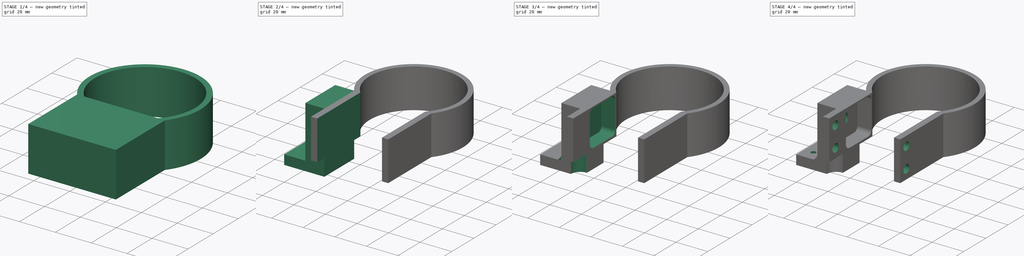
[diagram: build sequence overview — one tinted view per stage of 4, left to right]
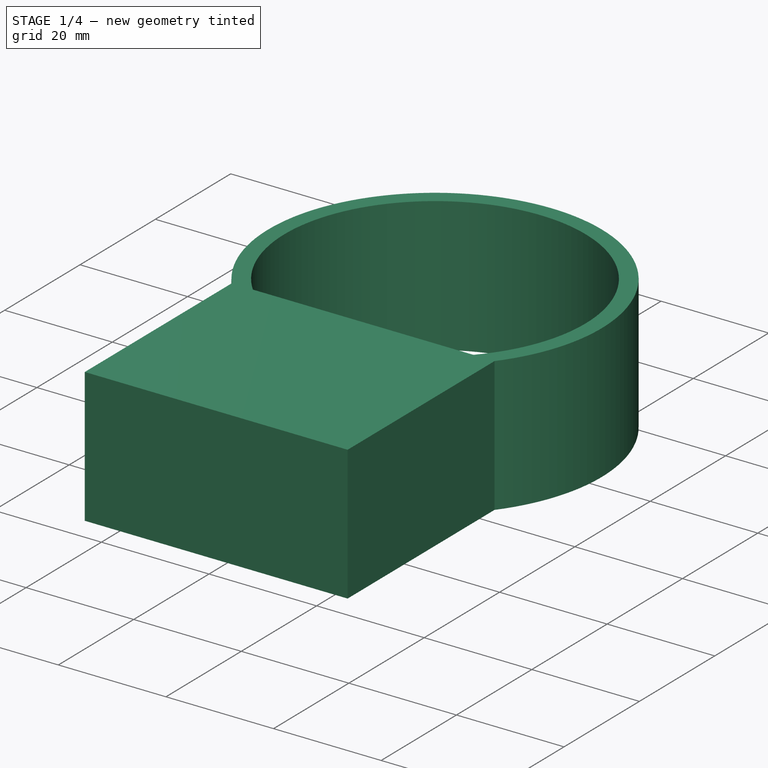
[diagram: stage 1 of 4 — iso view after this stage's code; geometry added in this stage tinted green]
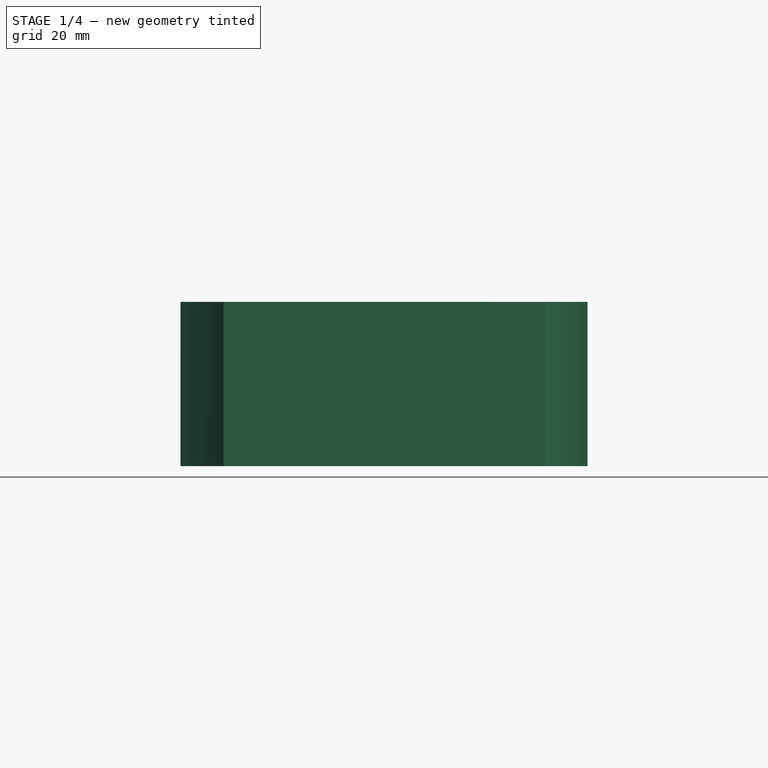
[diagram: stage 1 of 4 — front view after this stage's code; geometry added in this stage tinted green]
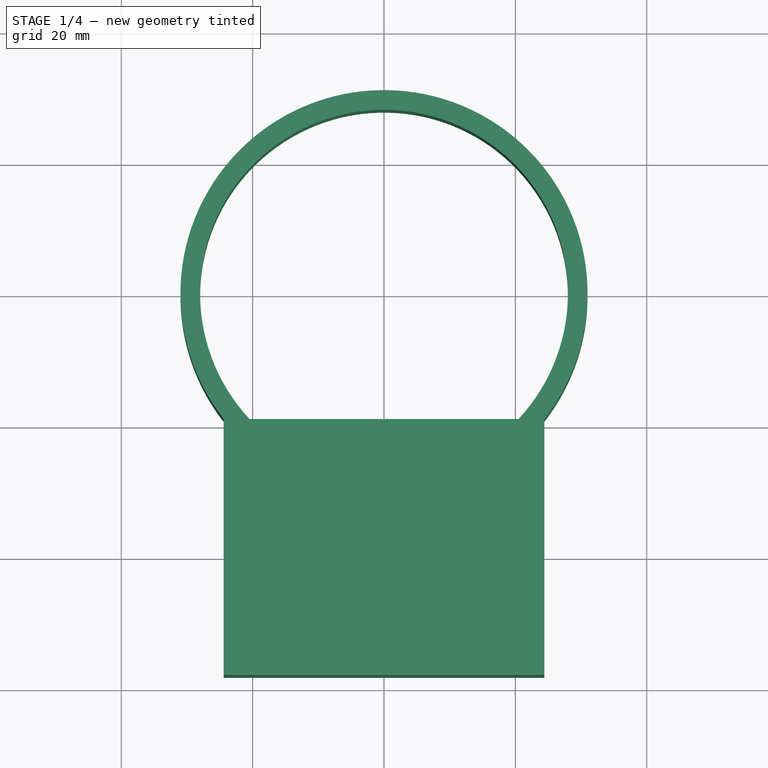
[diagram: stage 1 of 4 — top view after this stage's code; geometry added in this stage tinted green]
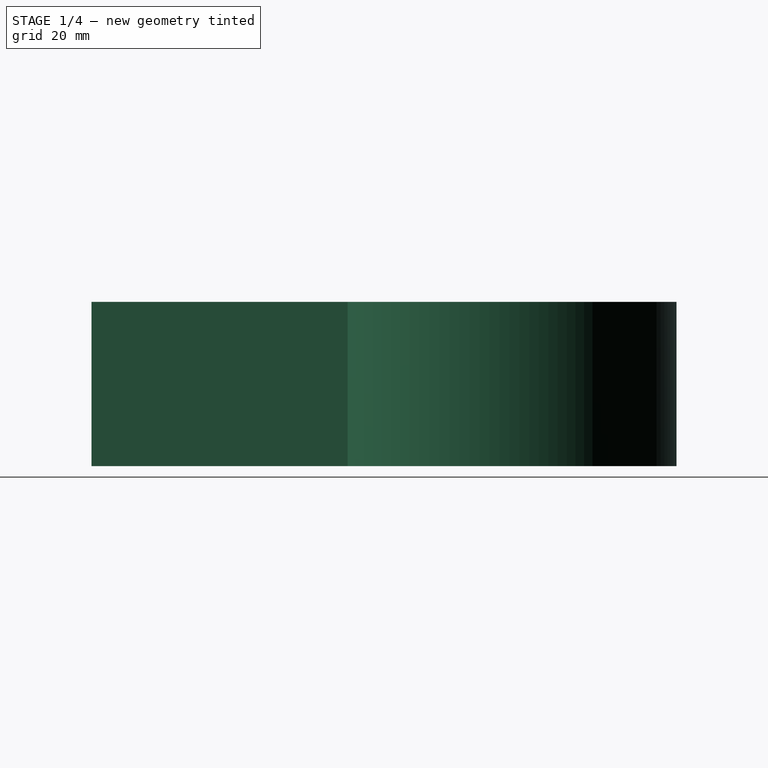
[diagram: stage 1 of 4 — right view after this stage's code; geometry added in this stage tinted green]
FCSTD DOCUMENT  (FreeCAD 1.0R38641 +468 (Git))
Label: DEC-Half-Pipe
License: All rights reserved
LicenseURL: https://en.wikipedia.org/wiki/All_rights_reserved
objects: Sketcher::SketchObject×12, PartDesign::Pocket×7, PartDesign::Pad×5, PartDesign::Body×1
note: 61 computed .brp shape members not serialized (recipe doc carries the construction recipe); baked Part::Feature solids carry a one-line shape summary decoded from their .brp

FEATURE [Sketcher::SketchObject] Sketch167  label="CircleMain003"
  ArcFitTolerance = 1e-06
  AttachmentSupport = -> [XY_Plane019]
  FullyConstrained = true
  MakeInternals = false
  MapMode = 5
  sketch-geometry (2):
    g0: ArcOfCircle CenterX=0 CenterY=0 CenterZ=0 NormalX=0 NormalY=0 NormalZ=1 AngleXU=0 Radius=31 StartAngle=5.61996 EndAngle=10.088
    g1: LineSegment StartX=-24.4283 StartY=-19.0855 StartZ=0 EndX=24.4283 EndY=-19.0855 EndZ=0
  constraints (6):
    c: Radius(g0) = 31
    c: Angle(g0) = 4.46804
    c: Coincident(g0,g-1)
    c: Coincident(g1,g0)
    c: Coincident(g1,g0)
    c: Horizontal(g1)
FEATURE [PartDesign::Pad] Pad079
  Direction = (0,0,1)
  Length = 25
  Length2 = 10
  Profile = -> Sketch167
  ReferenceAxis = -> Sketch167 [N_Axis]
  Refine = true
  Suppressed = false
  Type = 0
FEATURE [Sketcher::SketchObject] Sketch168  label="ClearCircle002"
  ArcFitTolerance = 1e-06
  AttachmentSupport = -> [XY_Plane019]
  FullyConstrained = true
  MakeInternals = false
  MapMode = 5
  sketch-geometry (1):
    g0: Circle CenterX=0 CenterY=0 CenterZ=0 NormalX=0 NormalY=0 NormalZ=1 AngleXU=0 Radius=28
  constraints (2):
    c: Diameter(g0) = 56
    c: Coincident(g0,g-1)
FEATURE [PartDesign::Pocket] Pocket096
  BaseFeature = -> Pad079
  Direction = (0,0,-1)
  Length = 25
  Length2 = 5
  Profile = -> Sketch168
  ReferenceAxis = -> Sketch168 [N_Axis]
  Refine = true
  Reversed = true
  Suppressed = false
  Type = 0
FEATURE [Sketcher::SketchObject] Sketch169  label="Rectangle003"
  ArcFitTolerance = 1e-06
  AttachmentSupport = -> [XY_Plane019]
  FullyConstrained = true
  MakeInternals = false
  MapMode = 5
  sketch-geometry (4):
    g0: LineSegment StartX=-24.4283 StartY=-19.0855 StartZ=0 EndX=-24.4283 EndY=-58.0855 EndZ=0
    g1: LineSegment StartX=-24.4283 StartY=-58.0855 StartZ=0 EndX=24.4283 EndY=-58.0855 EndZ=0
    g2: LineSegment StartX=24.4283 StartY=-58.0855 StartZ=0 EndX=24.4283 EndY=-19.0855 EndZ=0
    g3: LineSegment StartX=24.4283 StartY=-19.0855 StartZ=0 EndX=-24.4283 EndY=-19.0855 EndZ=0
  constraints (12):
    c: Coincident(g0,g1)
    c: Coincident(g1,g2)
    c: Coincident(g2,g3)
    c: Coincident(g3,g0)
    c: Vertical(g0)
    c: Vertical(g2)
    c: Horizontal(g1)
    c: Horizontal(g3)
    c: Distance(g1,g3) = 39
    c: DistanceY(g0,g-1) = 19.0855
    c: Distance(g-1,g0) = 31
    c: Distance(g-1,g2) = 31
FEATURE [PartDesign::Pad] Pad080
  BaseFeature = -> Pocket096
  Direction = (0,0,1)
  Length = 25
  Length2 = 10
  Profile = -> Sketch169
  ReferenceAxis = -> Sketch169 [N_Axis]
  Refine = true
  Suppressed = false
  Type = 0
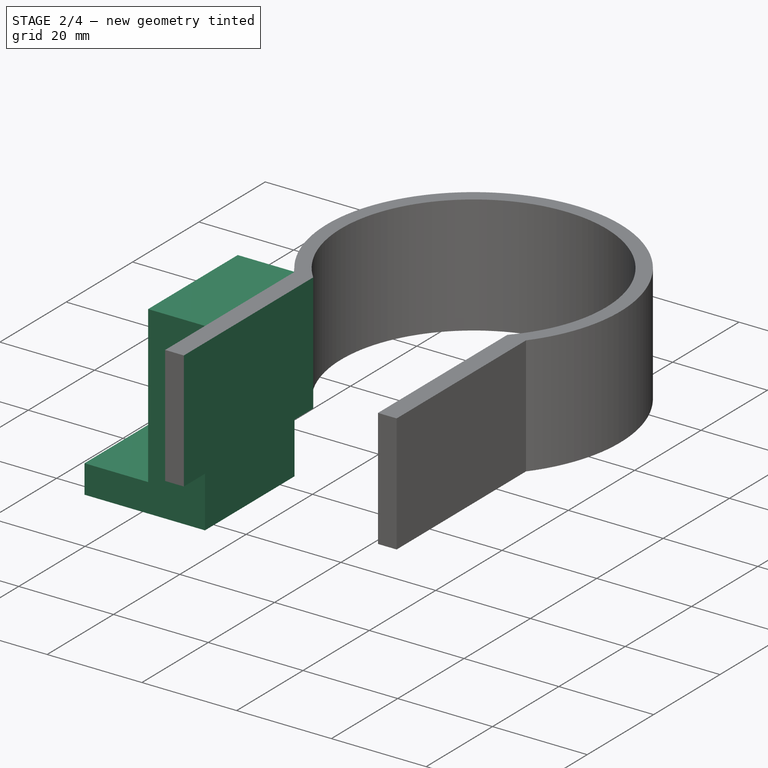
[diagram: stage 2 of 4 — iso view after this stage's code; geometry added in this stage tinted green]
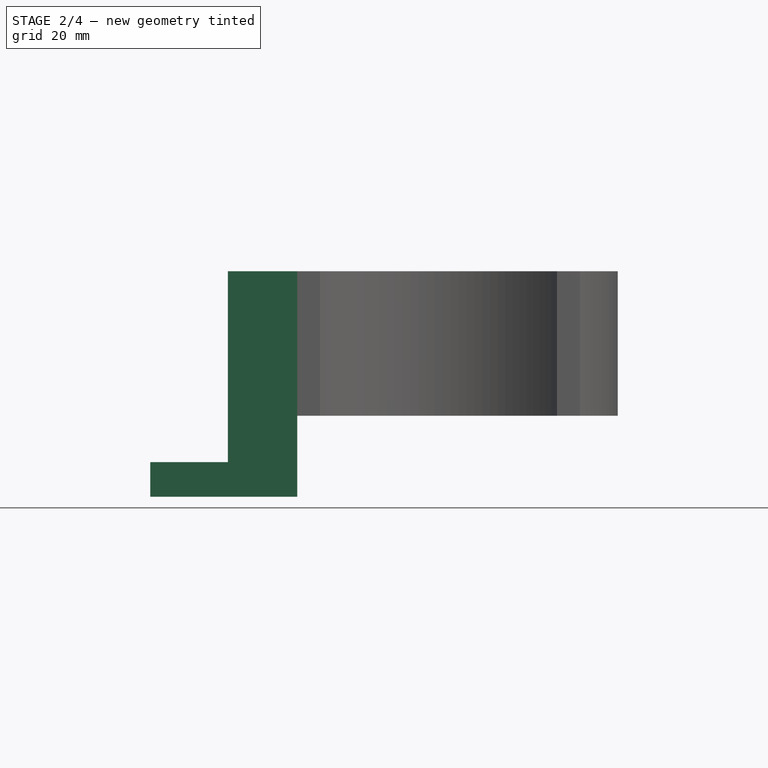
[diagram: stage 2 of 4 — front view after this stage's code; geometry added in this stage tinted green]
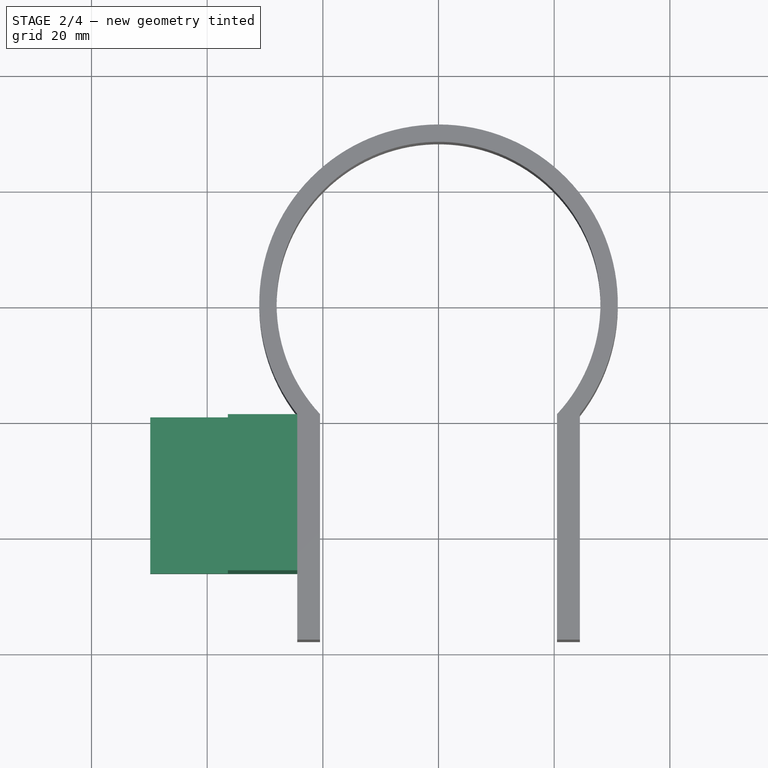
[diagram: stage 2 of 4 — top view after this stage's code; geometry added in this stage tinted green]
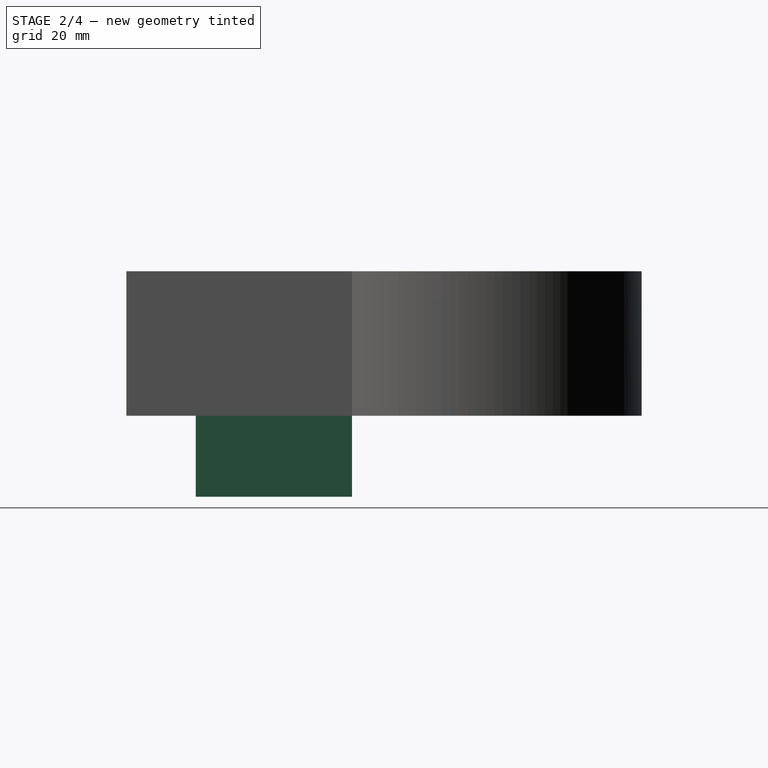
[diagram: stage 2 of 4 — right view after this stage's code; geometry added in this stage tinted green]
FEATURE [Sketcher::SketchObject] Sketch170  label="RectClear003"
  ArcFitTolerance = 1e-06
  AttachmentSupport = -> [XY_Plane019]
  FullyConstrained = true
  MakeInternals = false
  MapMode = 5
  sketch-geometry (4):
    g0: LineSegment StartX=-20.4876 StartY=-19.0855 StartZ=0 EndX=-20.4876 EndY=-58.0855 EndZ=0
    g1: LineSegment StartX=-20.4876 StartY=-58.0855 StartZ=0 EndX=20.4876 EndY=-58.0855 EndZ=0
    g2: LineSegment StartX=20.4876 StartY=-58.0855 StartZ=0 EndX=20.4876 EndY=-19.0855 EndZ=0
    g3: LineSegment StartX=20.4876 StartY=-19.0855 StartZ=0 EndX=-20.4876 EndY=-19.0855 EndZ=0
  constraints (12):
    c: Coincident(g0,g1)
    c: Coincident(g1,g2)
    c: Coincident(g2,g3)
    c: Coincident(g3,g0)
    c: Vertical(g0)
    c: Vertical(g2)
    c: Horizontal(g1)
    c: Horizontal(g3)
    c: Distance(g1,g3) = 39
    c: DistanceY(g0,g-1) = 19.0855
    c: Distance(g0,g-1) = 28
    c: Distance(g-1,g2) = 28
FEATURE [Sketcher::SketchObject] Sketch172
  ArcFitTolerance = 1e-06
  AttachmentSupport = -> [Pad080]
  FullyConstrained = true
  MakeInternals = false
  MapMode = 5
  Placement = pos=(-24.4283,0,0) rot=(0.57735,-0.57735,-0.57735;2.0944rad)
  sketch-geometry (4):
    g0: LineSegment StartX=19.0855 StartY=25 StartZ=0 EndX=19.0855 EndY=-14 EndZ=0
    g1: LineSegment StartX=19.0855 StartY=-14 StartZ=0 EndX=46.0855 EndY=-14 EndZ=0
    g2: LineSegment StartX=46.0855 StartY=-14 StartZ=0 EndX=46.0855 EndY=25 EndZ=0
    g3: LineSegment StartX=46.0855 StartY=25 StartZ=0 EndX=19.0855 EndY=25 EndZ=0
  constraints (12):
    c: Coincident(g0,g1)
    c: Coincident(g1,g2)
    c: Coincident(g2,g3)
    c: Coincident(g3,g0)
    c: Vertical(g0)
    c: Vertical(g2)
    c: Horizontal(g1)
    c: Horizontal(g3)
    c: Distance(g0,g2) = 27
    c: Distance(g1,g3) = 39
    c: DistanceX(g-1,g0) = 19.0855
    c: DistanceY(g-1,g0) = 25
FEATURE [PartDesign::Pad] Pad081
  BaseFeature = -> Pad080
  Direction = (-1,0,0)
  Length = 12
  Length2 = 10
  Profile = -> Sketch172
  ReferenceAxis = -> Sketch172 [N_Axis]
  Refine = true
  Suppressed = false
  Type = 0
FEATURE [Sketcher::SketchObject] Sketch173
  ArcFitTolerance = 1e-06
  FullyConstrained = false
  MakeInternals = false
  MapMode = 5
  Placement = pos=(-20.2541,-4.17343e-06,0) rot=(0.57735,0.57735,0.57735;2.0944rad)
  sketch-geometry (12):
    g0: LineSegment StartX=-43.0855 StartY=21.3325 StartZ=0 EndX=-43.0855 EndY=4.52755 EndZ=0
    g1: LineSegment StartX=-39.758 StartY=1.2 StartZ=0 EndX=-22.8782 EndY=1.2 EndZ=0
    g2: LineSegment StartX=-20.0855 StartY=3.99269 StartZ=0 EndX=-20.0855 EndY=21.3423 EndZ=0
    g3: LineSegment StartX=-22.9432 StartY=24.2 StartZ=0 EndX=-40.218 EndY=24.2 EndZ=0
    g4: ArcOfCircle CenterX=-39.758 CenterY=4.52755 CenterZ=0 NormalX=0 NormalY=0 NormalZ=1 AngleXU=0 Radius=3.32755 StartAngle=3.14159 EndAngle=4.71239
    g5: GeomPoint [constr] X=-43.0855 Y=1.2 Z=0
    g6: ArcOfCircle CenterX=-22.8782 CenterY=3.99269 CenterZ=0 NormalX=0 NormalY=0 NormalZ=1 AngleXU=0 Radius=2.79269 StartAngle=4.71239 EndAngle=6.28319
    g7: GeomPoint [constr] X=-20.0855 Y=1.2 Z=0
    g8: ArcOfCircle CenterX=-40.218 CenterY=21.3325 CenterZ=0 NormalX=0 NormalY=0 NormalZ=1 AngleXU=0 Radius=2.86755 StartAngle=1.5708 EndAngle=3.14159
    g9: GeomPoint [constr] X=-43.0855 Y=24.2 Z=0
    g10: ArcOfCircle CenterX=-22.9432 CenterY=21.3423 CenterZ=0 NormalX=0 NormalY=0 NormalZ=1 AngleXU=0 Radius=2.85774 StartAngle=2e-16 EndAngle=1.5708
    g11: GeomPoint [constr] X=-20.0855 Y=24.2 Z=0
  constraints (24):
    c: Vertical(g0)
    c: Vertical(g2)
    c: Horizontal(g1)
    c: Horizontal(g3)
    c: Distance(g9,g11) = 23
    c: Distance(g5,g9) = 23
    c: DistanceX(g7,g-1) = 20.0855
    c: DistanceY(g-1,g7) = 1.2
    c: PointOnObject(g5,g0)
    c: PointOnObject(g5,g1)
    c: Tangent(g0,g4) = -1.5708
    c: Tangent(g1,g4) = -1.5708
    c: PointOnObject(g7,g1)
    c: PointOnObject(g7,g2)
    c: Tangent(g1,g6) = -1.5708
    c: Tangent(g2,g6) = -1.5708
    c: PointOnObject(g9,g0)
    c: PointOnObject(g9,g3)
    c: Tangent(g0,g8) = -1.5708
    c: Tangent(g3,g8) = -1.5708
    c: PointOnObject(g11,g2)
    c: PointOnObject(g11,g3)
    c: Tangent(g2,g10) = -1.5708
    c: Tangent(g3,g10) = -1.5708
FEATURE [Sketcher::SketchObject] Sketch175
  ArcFitTolerance = 1e-06
  FullyConstrained = true
  MakeInternals = false
  MapMode = 5
  Placement = pos=(-34.8523,0,0) rot=(0.57735,-0.57735,-0.57735;2.0944rad)
  sketch-geometry (4):
    g0: LineSegment StartX=19.0855 StartY=-14 StartZ=0 EndX=46.0855 EndY=-14 EndZ=0
    g1: LineSegment StartX=46.0855 StartY=-14 StartZ=0 EndX=46.0855 EndY=-8 EndZ=0
    g2: LineSegment StartX=46.0855 StartY=-8 StartZ=0 EndX=19.0855 EndY=-8 EndZ=0
    g3: LineSegment StartX=19.0855 StartY=-8 StartZ=0 EndX=19.0855 EndY=-14 EndZ=0
  constraints (12):
    c: Coincident(g0,g1)
    c: Coincident(g1,g2)
    c: Coincident(g2,g3)
    c: Coincident(g3,g0)
    c: Horizontal(g0)
    c: Horizontal(g2)
    c: Vertical(g1)
    c: Vertical(g3)
    c: Distance(g1,g3) = 27
    c: Distance(g0,g2) = 6
    c: DistanceX(g-1,g2) = 19.0855
    c: DistanceY(g2,g-1) = 8
FEATURE [PartDesign::Pad] Pad082
  BaseFeature = -> Pad081
  Direction = (-1,1e-16,-1e-16)
  Length = 15
  Length2 = 10
  Profile = -> Sketch175
  ReferenceAxis = -> Sketch175 [N_Axis]
  Refine = true
  Suppressed = false
  Type = 0
FEATURE [PartDesign::Pocket] Pocket097
  BaseFeature = -> Pad082
  Direction = (0,0,-1)
  Length = 5
  Length2 = 5
  Profile = -> Sketch170
  ReferenceAxis = -> Sketch170 [N_Axis]
  Refine = true
  Reversed = true
  Suppressed = false
  Type = 1
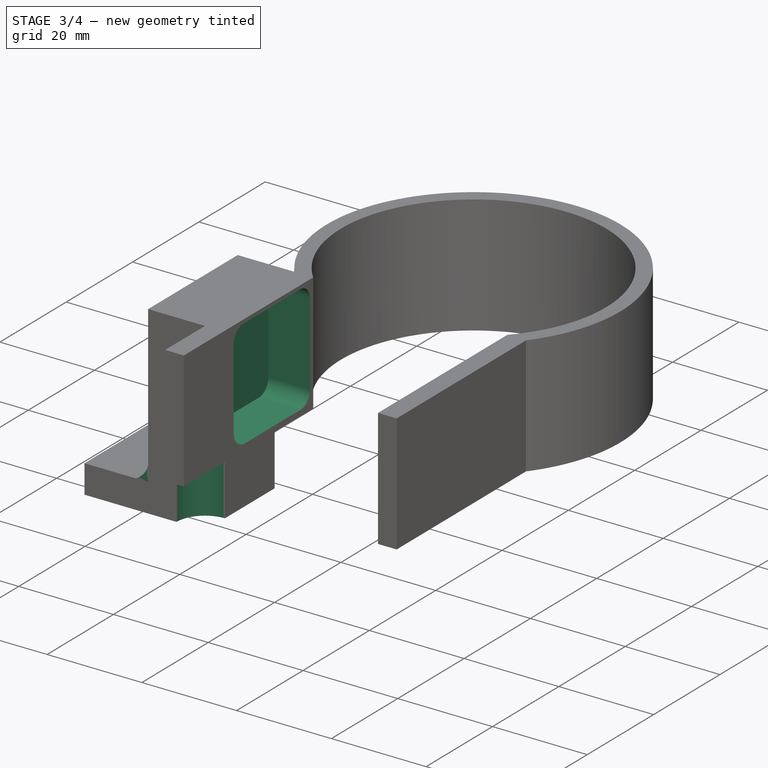
[diagram: stage 3 of 4 — iso view after this stage's code; geometry added in this stage tinted green]
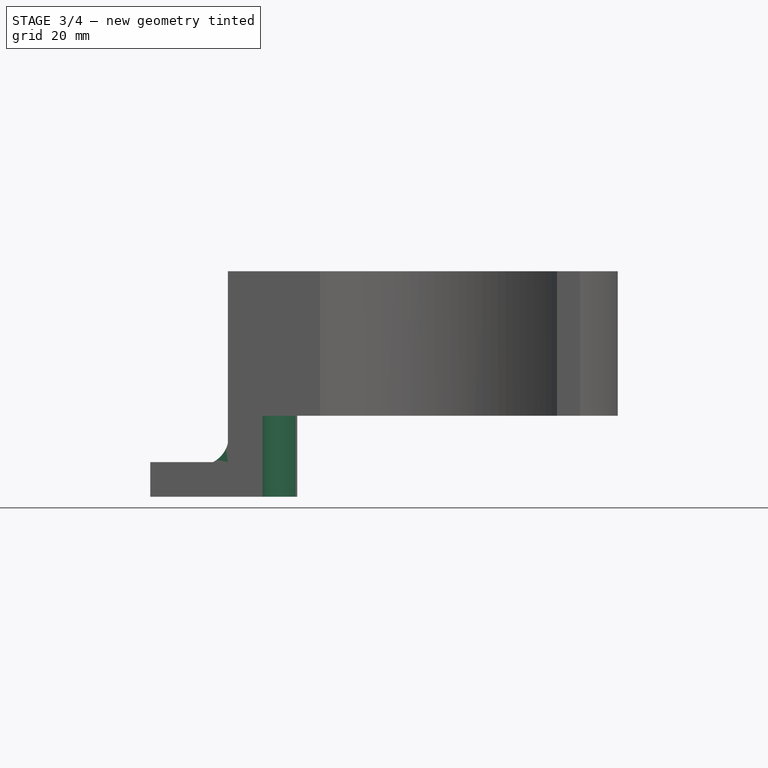
[diagram: stage 3 of 4 — front view after this stage's code; geometry added in this stage tinted green]
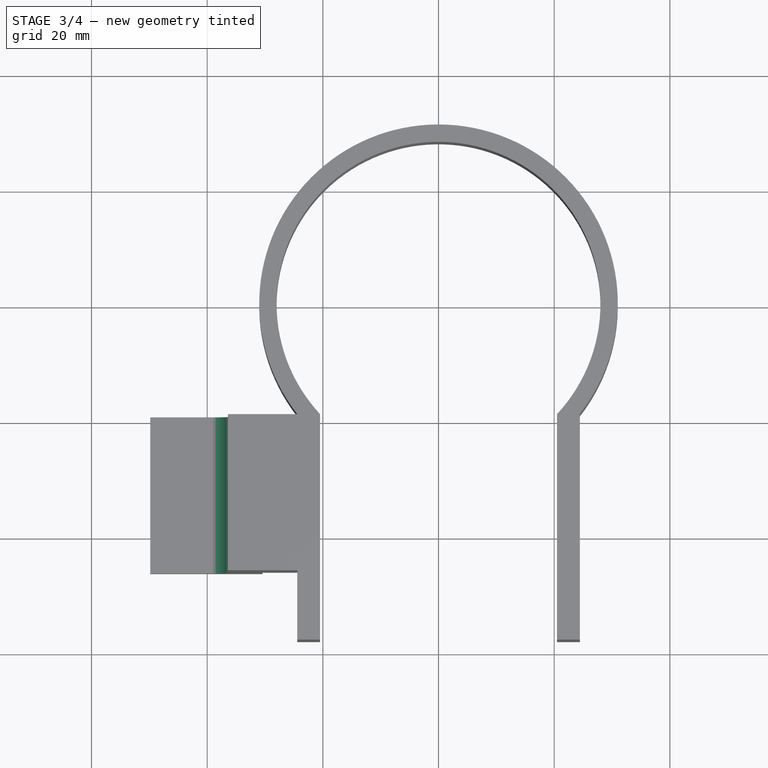
[diagram: stage 3 of 4 — top view after this stage's code; geometry added in this stage tinted green]
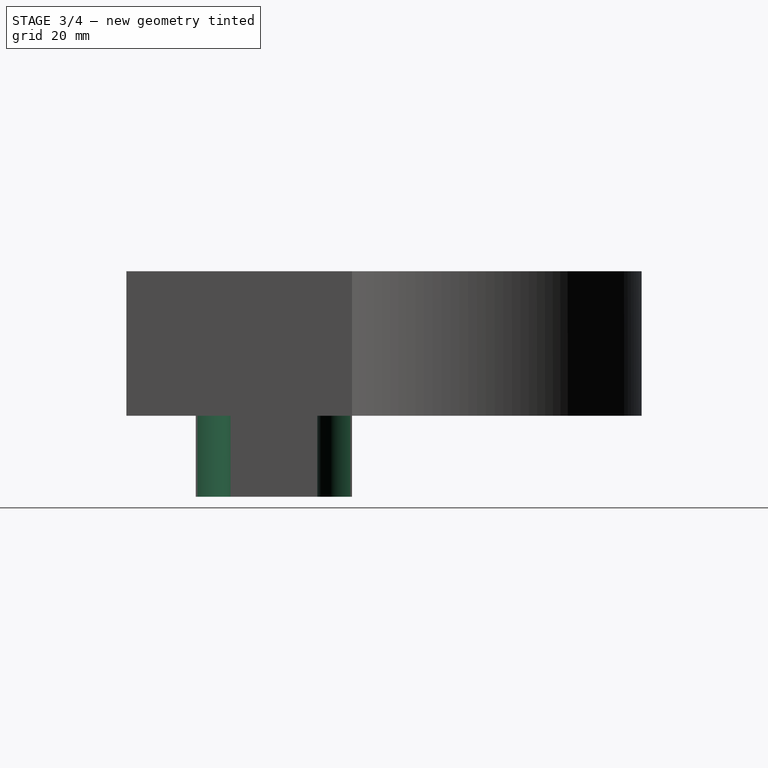
[diagram: stage 3 of 4 — right view after this stage's code; geometry added in this stage tinted green]
FEATURE [Sketcher::SketchObject] Sketch177
  ArcFitTolerance = 1e-06
  FullyConstrained = true
  MakeInternals = false
  MapMode = 5
  Placement = pos=(0,0,-14) rot=(1,0,0;3.14159rad)
  sketch-geometry (2):
    g0: Circle CenterX=-24.4283 CenterY=46.0855 CenterZ=0 NormalX=0 NormalY=0 NormalZ=1 AngleXU=0 Radius=6
    g1: Circle CenterX=-24.4283 CenterY=19.0855 CenterZ=0 NormalX=0 NormalY=0 NormalZ=1 AngleXU=0 Radius=6
  constraints (6):
    c: Diameter(g0) = 12
    c: Diameter(g1) = 12
    c: DistanceY(g-1,g1) = 19.0855
    c: Distance(g1,g-1) = 31
    c: DistanceX(g1,g0) = 0
    c: DistanceY(g1,g0) = 27
FEATURE [Sketcher::SketchObject] Sketch178
  ArcFitTolerance = 1e-06
  AttachmentSupport = -> [Pocket097]
  FullyConstrained = false
  MakeInternals = false
  MapMode = 5
  Placement = pos=(-2.33362e-06,-19.0855,-4.60186e-07) rot=(0,0.707107,0.707107;3.14159rad)
  sketch-geometry (4):
    g0: GeomPoint X=41.35 Y=-3.5 Z=0
    g1: ArcOfCircle CenterX=41.35 CenterY=-3.5 CenterZ=0 NormalX=0 NormalY=0 NormalZ=1 AngleXU=0 Radius=5.08243 StartAngle=3.22276 EndAngle=4.39008
    g2: LineSegment StartX=36.2843 StartY=-3.91207 StartZ=0 EndX=34.7295 EndY=-10.0052 EndZ=0
    g3: LineSegment StartX=34.7295 StartY=-10.0052 StartZ=0 EndX=39.7401 EndY=-8.32072 EndZ=0
  constraints (6):
    c: DistanceY(g0,g-1) = 3.5
    c: DistanceX(g-1,g0) = 41.35
    c: Coincident(g1,g0)
    c: Coincident(g2,g1)
    c: Coincident(g3,g2)
    c: Coincident(g3,g1)
FEATURE [PartDesign::Pad] Pad083
  BaseFeature = -> Pocket097
  Direction = (1.22272e-07,1,2.41118e-08)
  Length = 27
  Length2 = 10
  Profile = -> Sketch178
  ReferenceAxis = -> Sketch178 [N_Axis]
  Refine = true
  Reversed = true
  Suppressed = false
  Type = 0
FEATURE [PartDesign::Pocket] Pocket098
  BaseFeature = -> Pad083
  Direction = (-1,-2.06054e-07,2e-16)
  Length = 9
  Length2 = 5
  Profile = -> Sketch173
  ReferenceAxis = -> Sketch173 [N_Axis]
  Refine = true
  Suppressed = false
  Type = 0
FEATURE [PartDesign::Pocket] Pocket099
  BaseFeature = -> Pocket098
  Direction = (0,1e-16,1)
  Length = 14
  Length2 = 5
  Profile = -> Sketch177
  ReferenceAxis = -> Sketch177 [N_Axis]
  Refine = true
  Suppressed = false
  Type = 0
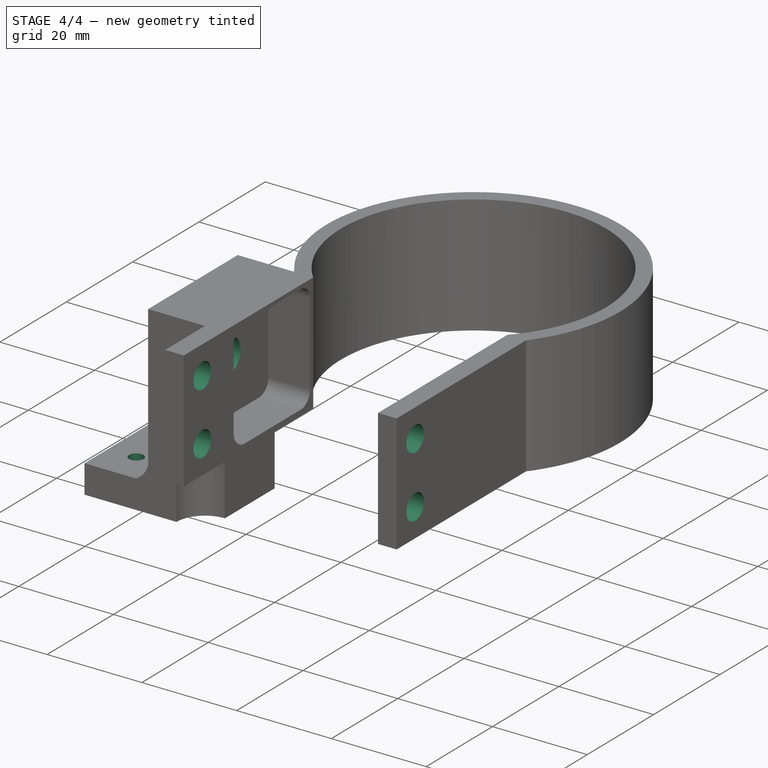
[diagram: stage 4 of 4 — iso view after this stage's code; geometry added in this stage tinted green]
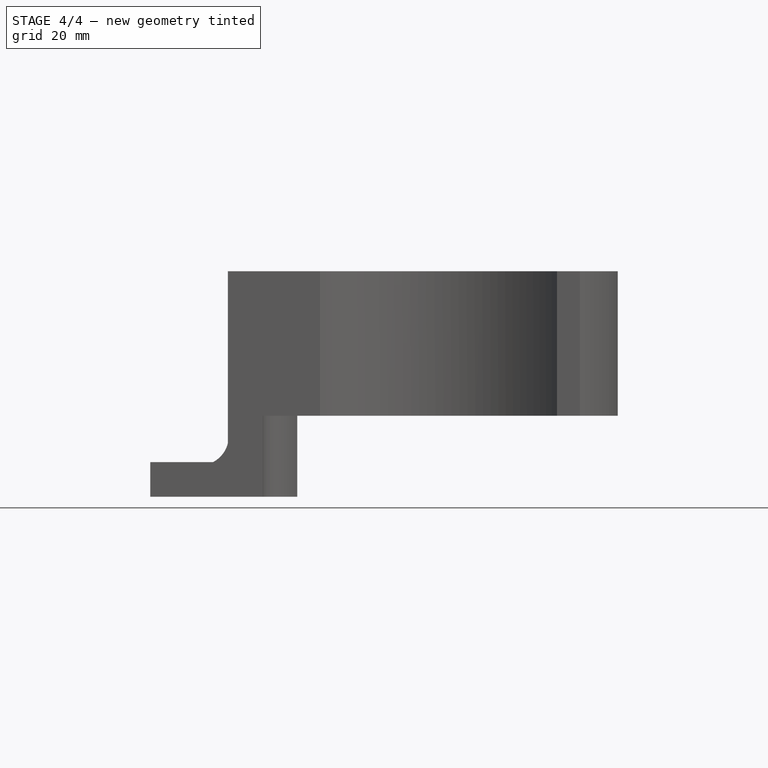
[diagram: stage 4 of 4 — front view after this stage's code; geometry added in this stage tinted green]
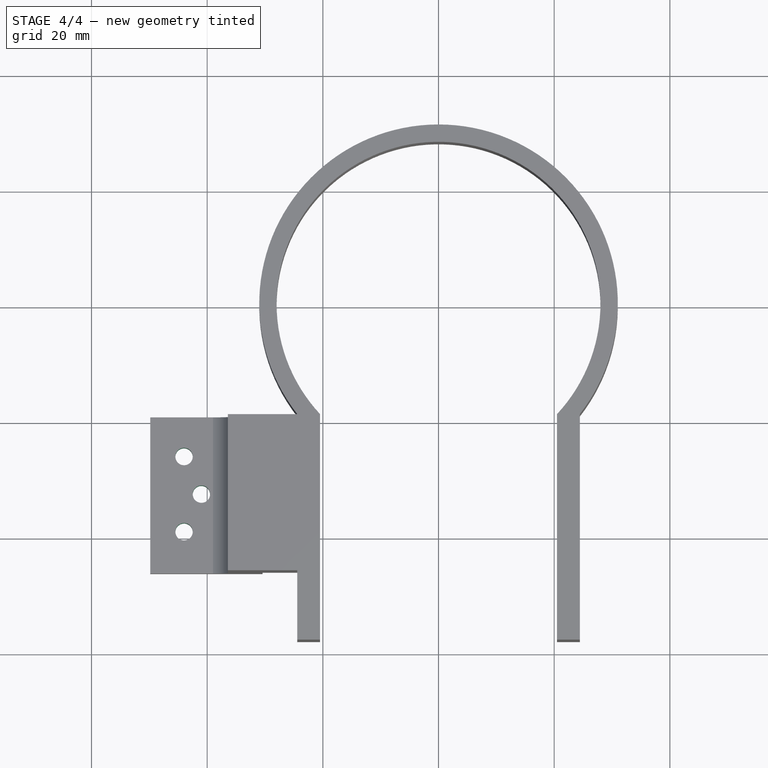
[diagram: stage 4 of 4 — top view after this stage's code; geometry added in this stage tinted green]
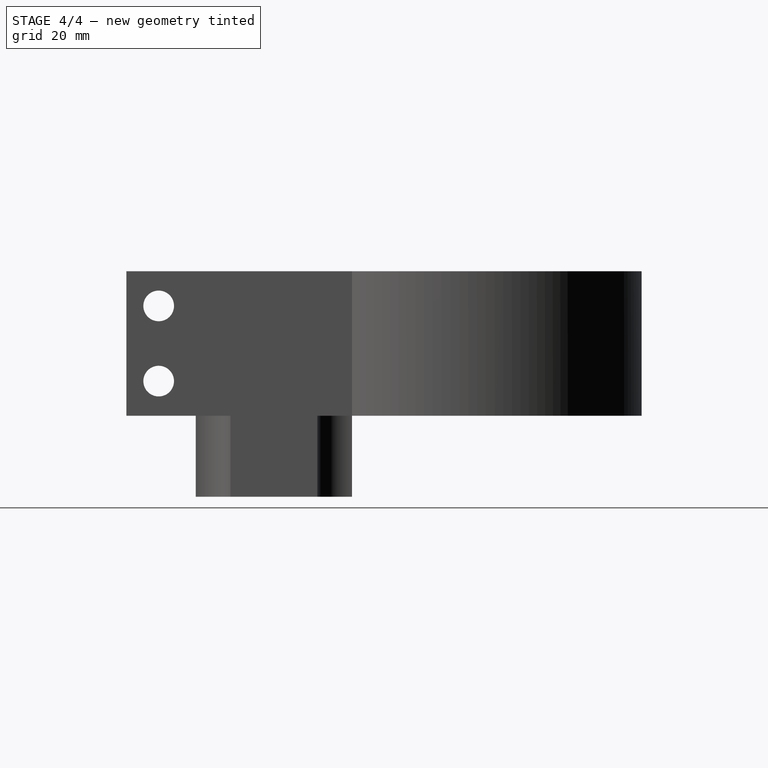
[diagram: stage 4 of 4 — right view after this stage's code; geometry added in this stage tinted green]
FEATURE [Sketcher::SketchObject] Sketch171
  ArcFitTolerance = 1e-06
  AttachmentSupport = -> [Pocket099]
  FullyConstrained = true
  MakeInternals = false
  MapMode = 5
  Placement = pos=(-24.4283,0,0) rot=(0.57735,-0.57735,-0.57735;2.0944rad)
  sketch-geometry (2):
    g0: Circle CenterX=52.5 CenterY=19 CenterZ=0 NormalX=0 NormalY=0 NormalZ=1 AngleXU=0 Radius=2.65
    g1: Circle CenterX=52.5 CenterY=6 CenterZ=0 NormalX=0 NormalY=0 NormalZ=1 AngleXU=0 Radius=2.65
  constraints (6):
    c: Diameter(g0) = 5.3
    c: DistanceX(g0) = 52.5
    c: DistanceY(g-1,g0) = 19
    c: Diameter(g1) = 5.3
    c: DistanceX(g-1,g1) = 52.5
    c: DistanceY(g-1,g1) = 6
FEATURE [PartDesign::Pocket] Pocket100
  BaseFeature = -> Pocket099
  Direction = (1,0,0)
  Length = 5
  Length2 = 5
  Profile = -> Sketch171
  ReferenceAxis = -> Sketch171 [N_Axis]
  Refine = true
  Suppressed = false
  Type = 1
FEATURE [Sketcher::SketchObject] Sketch174
  ArcFitTolerance = 1e-06
  AttachmentSupport = -> [Pocket100]
  FullyConstrained = true
  MakeInternals = false
  MapMode = 5
  Placement = pos=(-36.4283,0,0) rot=(0.57735,-0.57735,-0.57735;2.0944rad)
  sketch-geometry (1):
    g0: Circle CenterX=32 CenterY=12.5 CenterZ=0 NormalX=0 NormalY=0 NormalZ=1 AngleXU=0 Radius=3.5
  constraints (3):
    c: Diameter(g0) = 7
    c: DistanceY(g-1,g0) = 12.5
    c: DistanceX(g-1,g0) = 32
FEATURE [PartDesign::Pocket] Pocket101
  BaseFeature = -> Pocket100
  Direction = (1,0,0)
  Length = 8
  Length2 = 5
  Profile = -> Sketch174
  ReferenceAxis = -> Sketch174 [N_Axis]
  Refine = true
  Suppressed = false
  Type = 0
FEATURE [Sketcher::SketchObject] Sketch176
  ArcFitTolerance = 1e-06
  AttachmentSupport = -> [Pocket101]
  FullyConstrained = true
  MakeInternals = false
  MapMode = 5
  Placement = pos=(7e-15,0,-14) rot=(1,0,0;3.14159rad)
  sketch-geometry (3):
    g0: Circle CenterX=-44 CenterY=38.8542 CenterZ=0 NormalX=0 NormalY=0 NormalZ=1 AngleXU=0 Radius=1.5
    g1: Circle CenterX=-44 CenterY=25.8542 CenterZ=0 NormalX=0 NormalY=0 NormalZ=1 AngleXU=0 Radius=1.5
    g2: Circle CenterX=-41 CenterY=32.3542 CenterZ=0 NormalX=0 NormalY=0 NormalZ=1 AngleXU=0 Radius=1.5
  constraints (9):
    c: Diameter(g0) = 3
    c: Diameter(g1) = 3
    c: DistanceY(g-1,g1) = 25.8542
    c: DistanceY(g1,g0) = 13
    c: DistanceX(g0,g1) = 0
    c: DistanceX(g0,g-1) = 44
    c: Diameter(g2) = 3
    c: DistanceX(g1,g2) = 3
    c: DistanceY(g1,g2) = 6.5
FEATURE [PartDesign::Pocket] Pocket102
  BaseFeature = -> Pocket101
  Direction = (0,0,1)
  Length = 6
  Length2 = 5
  Profile = -> Sketch176
  ReferenceAxis = -> Sketch176 [N_Axis]
  Refine = true
  Suppressed = false
  Type = 0
FEATURE [PartDesign::Body] Body019  label="DEC-Half-Pipe"
  AllowCompound = false
  Group = -> [Sketch167,Sketch168,Pad079,Pocket096,Sketch169,Sketch170,Sketch171,Sketch172,Sketch173,Sketch174,Sketch175,Sketch176,Sketch177,Sketch178,Pad080,Pad081,Pad082,Pocket097,Pad083,Pocket098,Pocket099,Pocket100,Pocket101,Pocket102]
  Origin = -> Origin019
  Tip = -> Pocket102
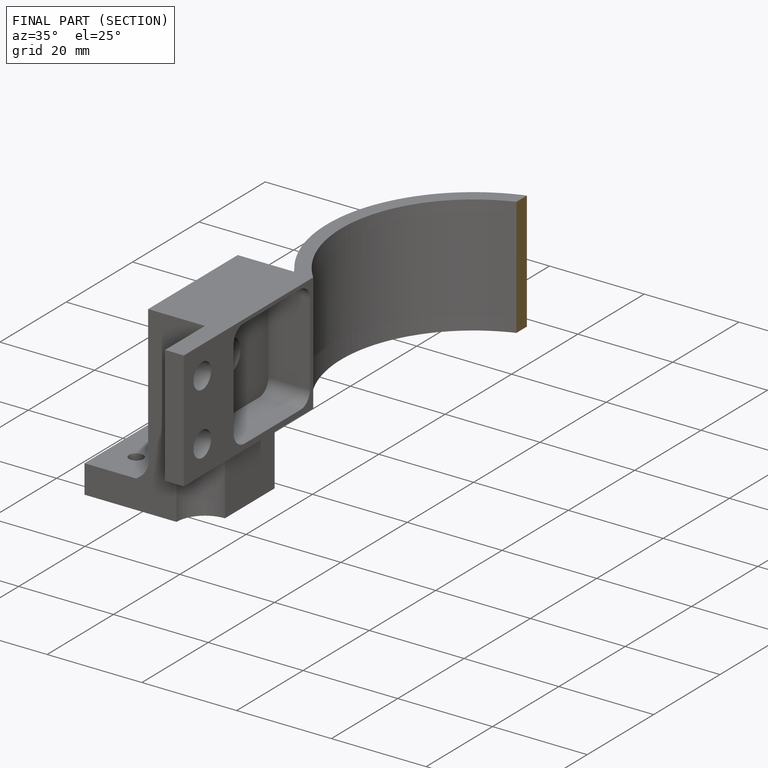
[diagram: finished part — half-section view (interior)]
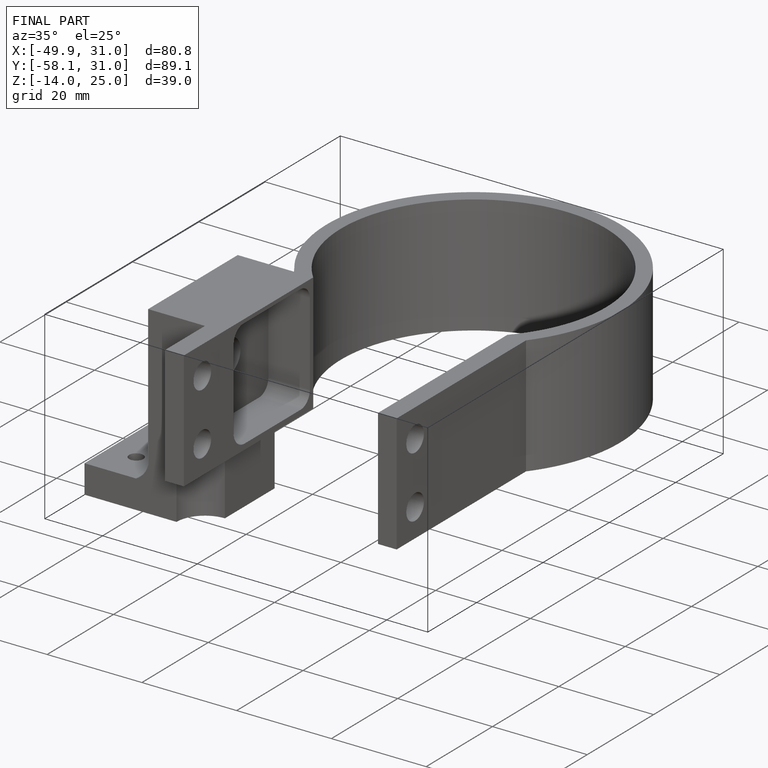
[diagram: finished part — iso view with bounding-box wireframe]
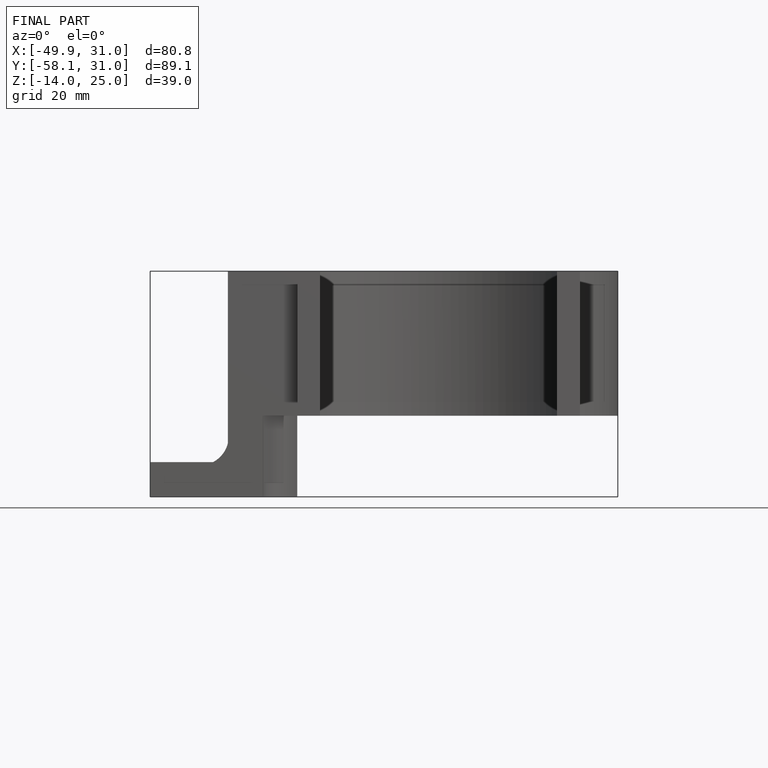
[diagram: finished part — front view with bounding-box wireframe]
